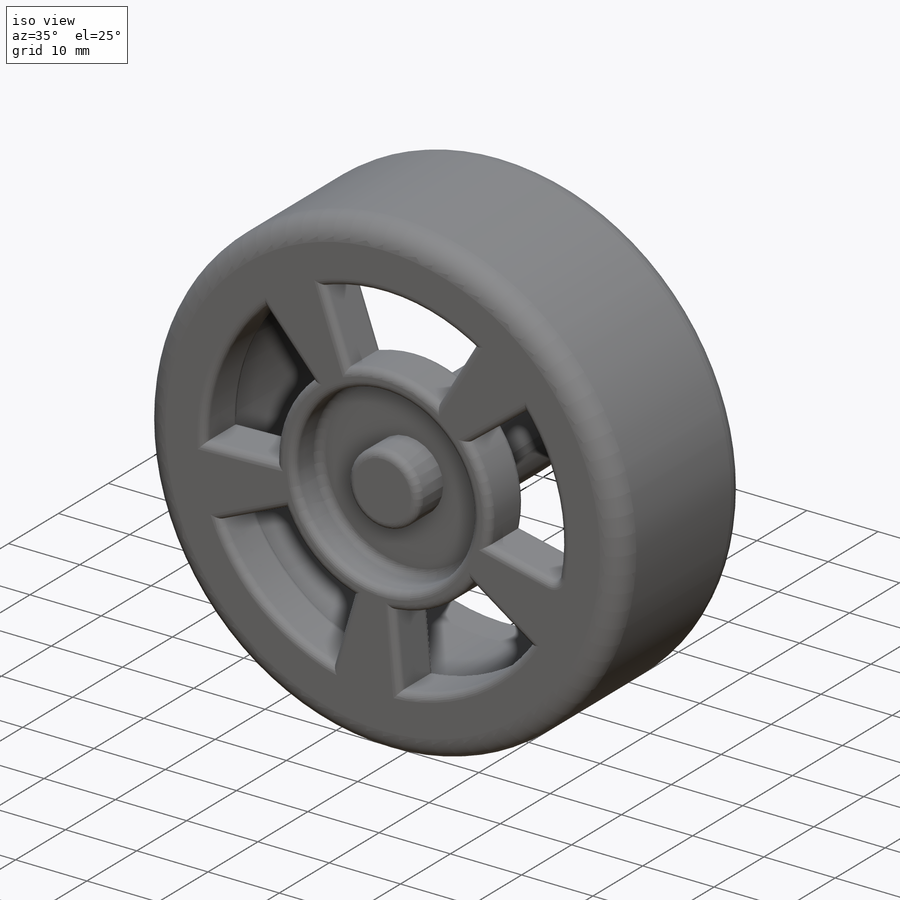
[diagram: iso view]
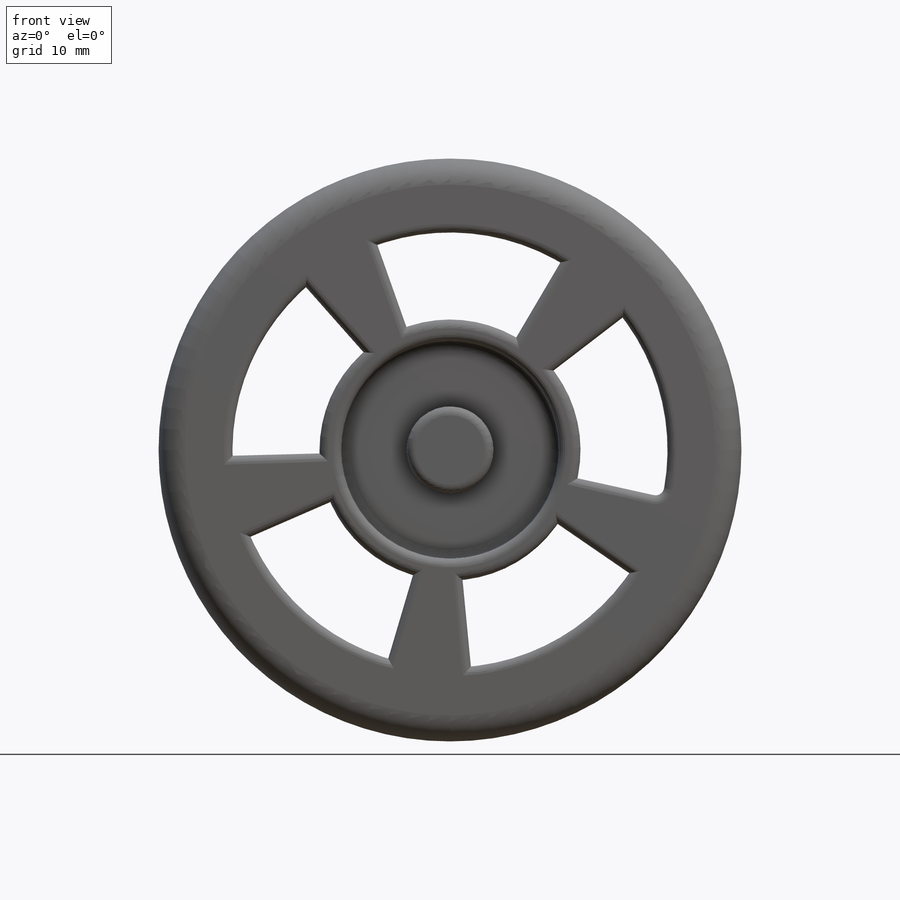
[diagram: front view]
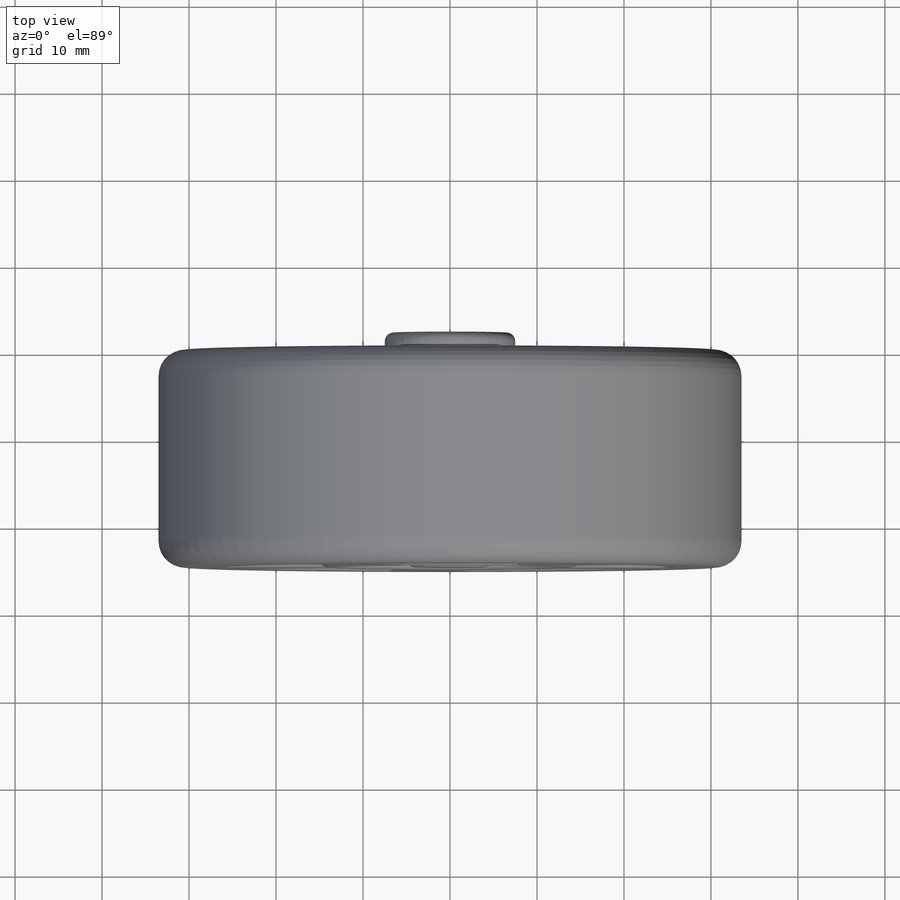
[diagram: top view]
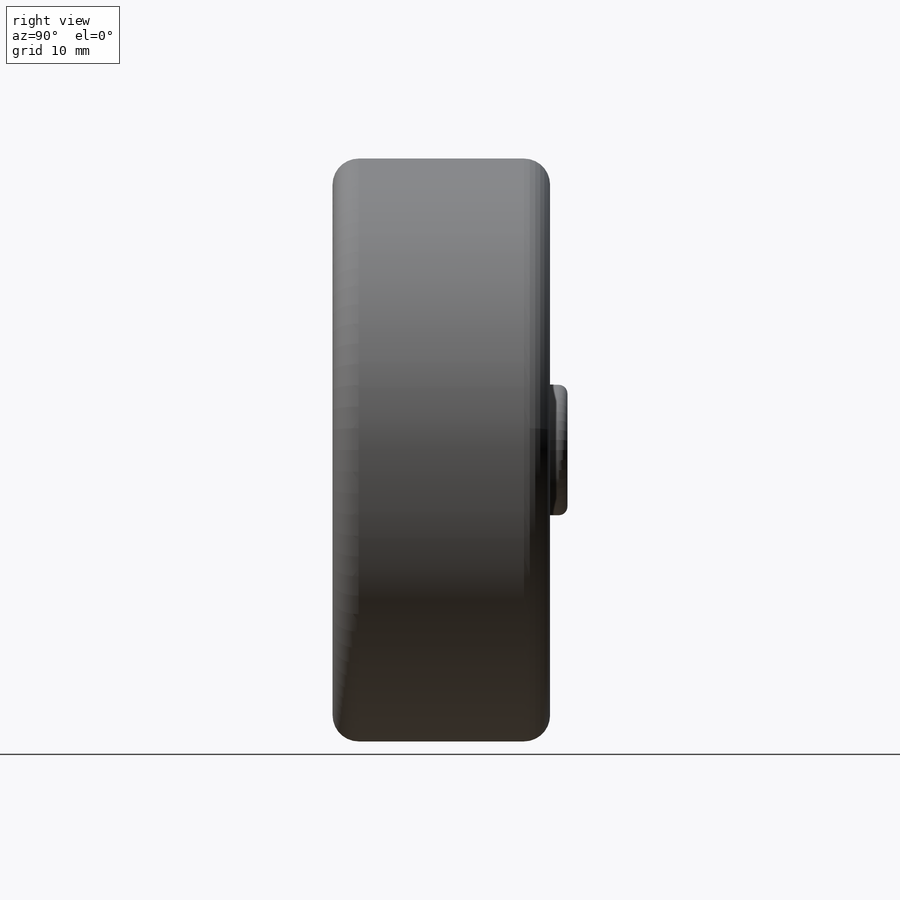
[diagram: right view]
SOLIDWORKS PART (.sldprt)
format: sldprt  version: not decoded by parser v0  size: 683,520 bytes
history: native  units: mm
features: sketch x7, cut_extrude x4, fillet x4, plane x3, extrude x3, material x1 (+10 scaffold rows collapsed)
feature tree (32):
  scaffold x10  (default folders/planes/origin — collapsed)
  material  "材质 <未指定>"
  plane  "前视"
  plane  "上视"
  plane  "右视"
  sketch  "草图1"  dims[D1=67.0mm]
  extrude  "凸台-拉伸1"  Depth=25mm
  sketch  "草图2"  dims[c1.D1=23.5646mm c2.D1=50.0deg c2.D2=5.0]
  cut_extrude  "切除-拉伸1"  [1 undecoded]
  sketch  "草图3"  dims[D1=25.0mm]
  cut_extrude  "切除-拉伸2"  Depth=5mm
  sketch  "草图4"  dims[D1=10.0mm]
  extrude  "凸台-拉伸2"  Depth=5mm
  fillet  "圆角2"  Radius=3mm
  fillet  "圆角3"  Radius=3mm
  sketch  "草图6"  dims[D1=52.0mm]
  cut_extrude  "切除-拉伸3"  Depth=18mm
  fillet  "圆角1"  Radius=1mm
  sketch  "草图7"  dims[D1=15.0mm]
  extrude  "凸台-拉伸3"  Depth=20mm
  sketch  "草图8"  dims[D1=2.5mm D2=7.0mm]
  cut_extrude  "切除-拉伸4"  Depth=5mm
  fillet  "圆角4"  Radius=1mm
decode coverage: 17 of 18 modeling features carry decoded parameters
note: 1 parameter value undecoded
note: suppression state not decoded; provenance and decode notes live in map.json
